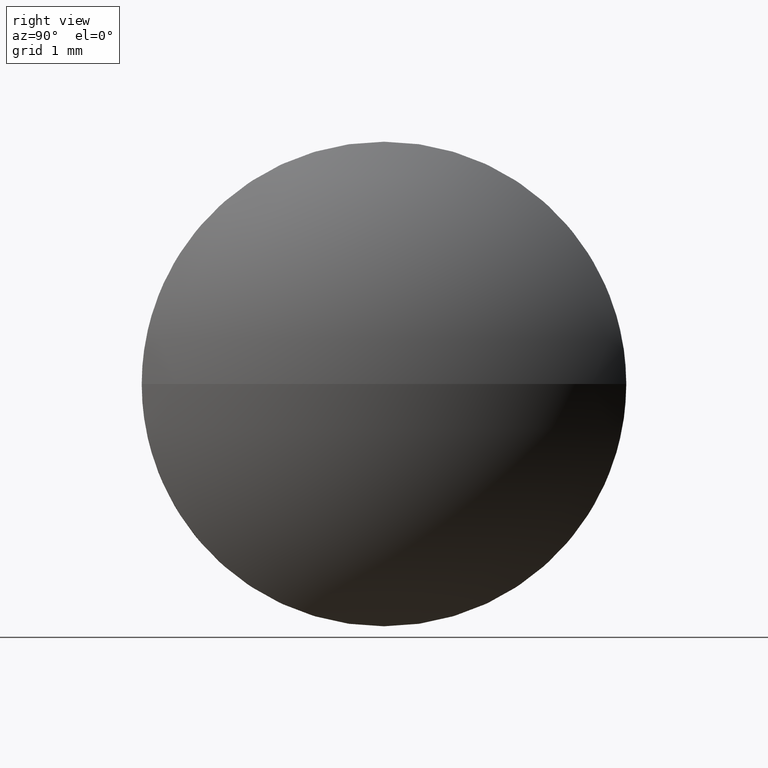
[diagram: clean part render]
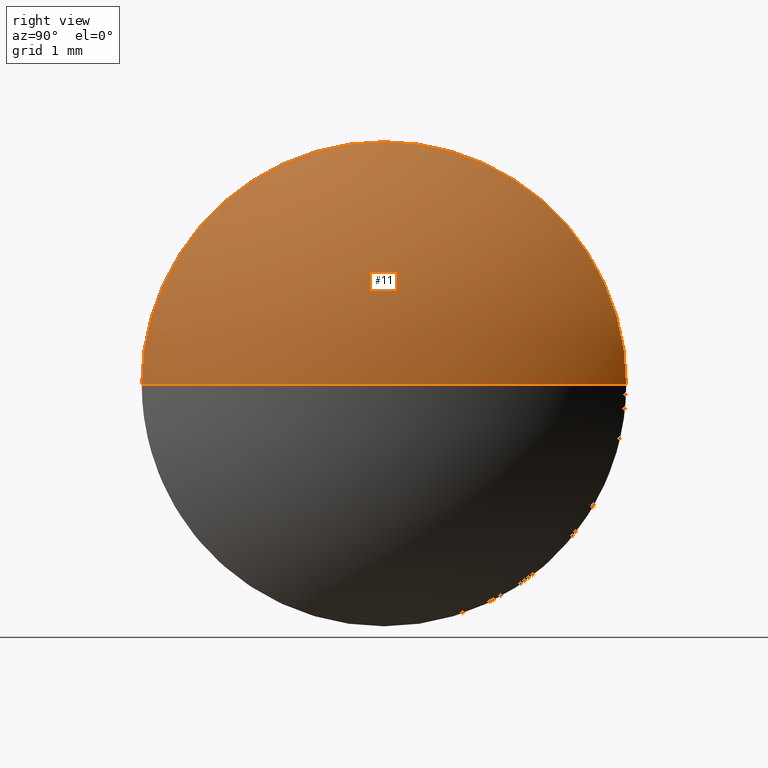
[diagram: same view with one face highlighted and labeled with its STEP entity id]
A machine part, right view. The second image highlights one B-rep face of the part: STEP entity #11.
In plain terms, the highlighted spherical surface has radius 2.8741 mm.
Its self-contained STEP definition (entity closure, byte-faithful):
#2 = CARTESIAN_POINT ( 'NONE',  ( 370.6620261446945500, 55.67682587969912300, 0.0000000000000000000 ) ) ;
#3 = EDGE_CURVE ( 'NONE', #177, #56, #150, .T. ) ;
#8 = CIRCLE ( 'NONE', #165, 2.874135802469146600 ) ;
#10 = ORIENTED_EDGE ( 'NONE', *, *, #129, .F. ) ;
#11 = ADVANCED_FACE ( 'NONE', ( #83 ), #139, .T. ) ;
#14 = AXIS2_PLACEMENT_3D ( 'NONE', #2, #45, #178 ) ;
#17 = CARTESIAN_POINT ( 'NONE',  ( 370.6620261446945500, 55.67682587969912300, 2.000000000000001800 ) ) ;
#18 = CARTESIAN_POINT ( 'NONE',  ( 370.6620261446945500, 57.67682587969912300, 2.449293598294690600E-016 ) ) ;
#44 = VERTEX_POINT ( 'NONE', #18 ) ;
#45 = DIRECTION ( 'NONE',  ( -1.000000000000000000, -0.0000000000000000000, -0.0000000000000000000 ) ) ;
#56 = VERTEX_POINT ( 'NONE', #63 ) ;
#63 = CARTESIAN_POINT ( 'NONE',  ( 370.6620261446945500, 53.67682587969914500, 0.0000000000000000000 ) ) ;
#75 = DIRECTION ( 'NONE',  ( 0.0000000000000000000, 0.0000000000000000000, 1.000000000000000000 ) ) ;
#76 = CIRCLE ( 'NONE', #14, 2.000000000000001800 ) ;
#81 = EDGE_LOOP ( 'NONE', ( #116, #156, #125, #10 ) ) ;
#83 = FACE_OUTER_BOUND ( 'NONE', #81, .T. ) ;
#85 = DIRECTION ( 'NONE',  ( 0.0000000000000000000, 0.0000000000000000000, -1.000000000000000000 ) ) ;
#86 = CARTESIAN_POINT ( 'NONE',  ( 370.6620261446945500, 55.67682587969912300, 0.0000000000000000000 ) ) ;
#99 = CARTESIAN_POINT ( 'NONE',  ( 368.5978903422254100, 55.67682587969913800, 0.0000000000000000000 ) ) ;
#100 = DIRECTION ( 'NONE',  ( -1.000000000000000000, 0.0000000000000000000, 0.0000000000000000000 ) ) ;
#101 = DIRECTION ( 'NONE',  ( -1.000000000000000000, -0.0000000000000000000, -0.0000000000000000000 ) ) ;
#104 = DIRECTION ( 'NONE',  ( 0.0000000000000000000, -1.000000000000000000, -1.224646799147354400E-016 ) ) ;
#110 = EDGE_CURVE ( 'NONE', #177, #44, #8, .T. ) ;
#114 = EDGE_CURVE ( 'NONE', #135, #44, #185, .T. ) ;
#116 = ORIENTED_EDGE ( 'NONE', *, *, #3, .F. ) ;
#118 = CARTESIAN_POINT ( 'NONE',  ( 368.5978903422254100, 55.67682587969913800, 0.0000000000000000000 ) ) ;
#121 = DIRECTION ( 'NONE',  ( 0.0000000000000000000, -1.224646799147353200E-016, 1.000000000000000000 ) ) ;
#125 = ORIENTED_EDGE ( 'NONE', *, *, #114, .F. ) ;
#126 = AXIS2_PLACEMENT_3D ( 'NONE', #99, #85, #100 ) ;
#129 = EDGE_CURVE ( 'NONE', #56, #135, #76, .T. ) ;
#130 = DIRECTION ( 'NONE',  ( 0.0000000000000000000, -1.000000000000000000, 0.0000000000000000000 ) ) ;
#131 = CARTESIAN_POINT ( 'NONE',  ( 371.4720261446945500, 55.67682587969913800, 0.0000000000000000000 ) ) ;
#133 = CARTESIAN_POINT ( 'NONE',  ( 368.5978903422254100, 55.67682587969913800, 0.0000000000000000000 ) ) ;
#135 = VERTEX_POINT ( 'NONE', #17 ) ;
#139 = SPHERICAL_SURFACE ( 'NONE', #141, 2.874135802469149200 ) ;
#141 = AXIS2_PLACEMENT_3D ( 'NONE', #118, #147, #130 ) ;
#147 = DIRECTION ( 'NONE',  ( 0.0000000000000000000, 0.0000000000000000000, 1.000000000000000000 ) ) ;
#150 = CIRCLE ( 'NONE', #126, 2.874135802469146600 ) ;
#156 = ORIENTED_EDGE ( 'NONE', *, *, #110, .T. ) ;
#165 = AXIS2_PLACEMENT_3D ( 'NONE', #133, #121, #104 ) ;
#177 = VERTEX_POINT ( 'NONE', #131 ) ;
#178 = DIRECTION ( 'NONE',  ( 0.0000000000000000000, 0.0000000000000000000, 1.000000000000000000 ) ) ;
#183 = AXIS2_PLACEMENT_3D ( 'NONE', #86, #101, #75 ) ;
#185 = CIRCLE ( 'NONE', #183, 2.000000000000001800 ) ;